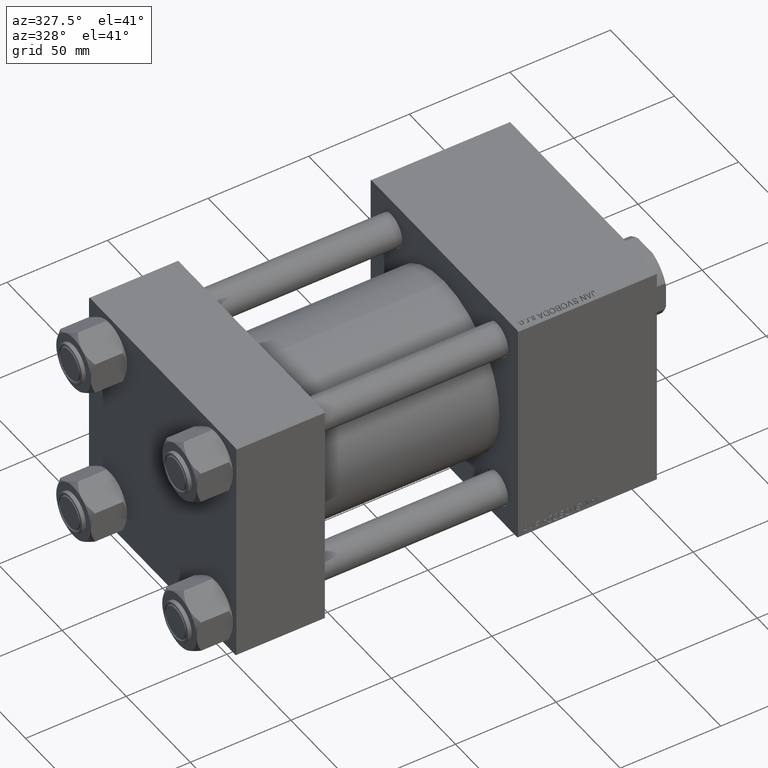
[diagram: clean part render]
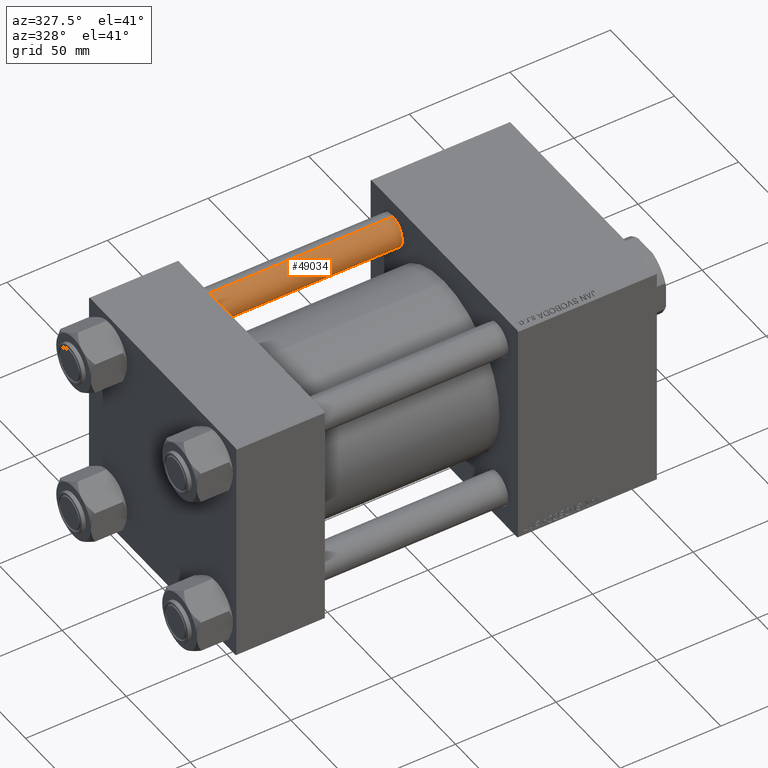
[diagram: same view with one face highlighted and labeled with its STEP entity id]
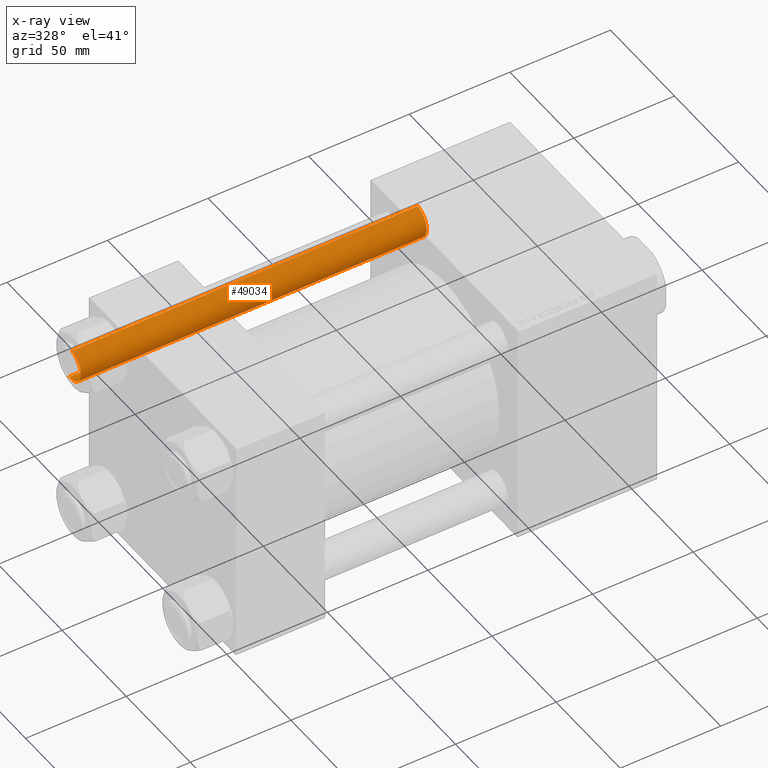
[diagram: x-ray of the same camera — body ghosted, the highlighted face saturated]
A machine part, auxiliary view. The second image highlights one B-rep face of the part: STEP entity #49034.
The next image is the same camera in x-ray: the body ghosted, the highlighted face saturated — about 0% of this face is hidden behind the body in this view.
In plain terms, the highlighted cylindrical surface (edge-blend (fillet) strip) has radius 8 mm, axis along (-1, 0, 0).
Its self-contained STEP definition (entity closure, byte-faithful):
#1180 = ORIENTED_EDGE ( 'NONE', *, *, #3285, .T. ) ;
#1423 = CARTESIAN_POINT ( 'NONE',  ( -8.000000000000000000, 0.000000000000000000, 0.4999999999999449329 ) ) ;
#2885 = ORIENTED_EDGE ( 'NONE', *, *, #10576, .T. ) ;
#3060 = CARTESIAN_POINT ( 'NONE',  ( 8.000000000000000000, 9.797174393178825657E-16, 173.0000000000000000 ) ) ;
#3285 = EDGE_CURVE ( 'NONE', #13193, #42670, #40667, .T. ) ;
#5450 = VECTOR ( 'NONE', #26248, 1000.000000000000000 ) ;
#10503 = ORIENTED_EDGE ( 'NONE', *, *, #45530, .F. ) ;
#10576 = EDGE_CURVE ( 'NONE', #24737, #37951, #46845, .T. ) ;
#10806 = ORIENTED_EDGE ( 'NONE', *, *, #26263, .T. ) ;
#11566 = DIRECTION ( 'NONE',  ( -0.000000000000000000, -0.000000000000000000, -1.000000000000000000 ) ) ;
#13193 = VERTEX_POINT ( 'NONE', #48691 ) ;
#13852 = CARTESIAN_POINT ( 'NONE',  ( 8.000000000000000000, 9.797174393178825657E-16, 0.4999999999999449329 ) ) ;
#14088 = DIRECTION ( 'NONE',  ( 1.000000000000000000, 0.000000000000000000, 0.000000000000000000 ) ) ;
#15491 = CYLINDRICAL_SURFACE ( 'NONE', #25014, 8.000000000000000000 ) ;
#17225 = CARTESIAN_POINT ( 'NONE',  ( 0.000000000000000000, 0.000000000000000000, 0.4999999999999449329 ) ) ;
#17564 = VECTOR ( 'NONE', #50980, 1000.000000000000000 ) ;
#22474 = CARTESIAN_POINT ( 'NONE',  ( 0.000000000000000000, 0.000000000000000000, 172.5000000000000000 ) ) ;
#23448 = AXIS2_PLACEMENT_3D ( 'NONE', #17225, #33220, #32731 ) ;
#24737 = VERTEX_POINT ( 'NONE', #1423 ) ;
#25014 = AXIS2_PLACEMENT_3D ( 'NONE', #31486, #11566, #43530 ) ;
#26248 = DIRECTION ( 'NONE',  ( -0.000000000000000000, -0.000000000000000000, -1.000000000000000000 ) ) ;
#26263 = EDGE_CURVE ( 'NONE', #42670, #24737, #38020, .T. ) ;
#28766 = CARTESIAN_POINT ( 'NONE',  ( -8.000000000000000000, 0.000000000000000000, 172.5000000000000000 ) ) ;
#31486 = CARTESIAN_POINT ( 'NONE',  ( 0.000000000000000000, 0.000000000000000000, 173.0000000000000000 ) ) ;
#32731 = DIRECTION ( 'NONE',  ( 1.000000000000000000, 0.000000000000000000, 0.000000000000000000 ) ) ;
#33220 = DIRECTION ( 'NONE',  ( -0.000000000000000000, -0.000000000000000000, 1.000000000000000000 ) ) ;
#33495 = DIRECTION ( 'NONE',  ( 0.000000000000000000, 0.000000000000000000, -1.000000000000000000 ) ) ;
#34611 = CARTESIAN_POINT ( 'NONE',  ( -8.000000000000000000, 0.000000000000000000, 173.0000000000000000 ) ) ;
#37951 = VERTEX_POINT ( 'NONE', #13852 ) ;
#38020 = LINE ( 'NONE', #34611, #5450 ) ;
#40667 = CIRCLE ( 'NONE', #44037, 8.000000000000000000 ) ;
#42670 = VERTEX_POINT ( 'NONE', #28766 ) ;
#43115 = LINE ( 'NONE', #3060, #17564 ) ;
#43530 = DIRECTION ( 'NONE',  ( -1.000000000000000000, 0.000000000000000000, 0.000000000000000000 ) ) ;
#44037 = AXIS2_PLACEMENT_3D ( 'NONE', #22474, #33495, #14088 ) ;
#45530 = EDGE_CURVE ( 'NONE', #13193, #37951, #43115, .T. ) ;
#46845 = CIRCLE ( 'NONE', #23448, 8.000000000000000000 ) ;
#48224 = EDGE_LOOP ( 'NONE', ( #10503, #1180, #10806, #2885 ) ) ;
#48691 = CARTESIAN_POINT ( 'NONE',  ( 8.000000000000000000, 9.797174393178825657E-16, 172.5000000000000000 ) ) ;
#49034 = ADVANCED_FACE ( 'NONE', ( #51394 ), #15491, .T. ) ;
#50980 = DIRECTION ( 'NONE',  ( -0.000000000000000000, -0.000000000000000000, -1.000000000000000000 ) ) ;
#51394 = FACE_OUTER_BOUND ( 'NONE', #48224, .T. ) ;